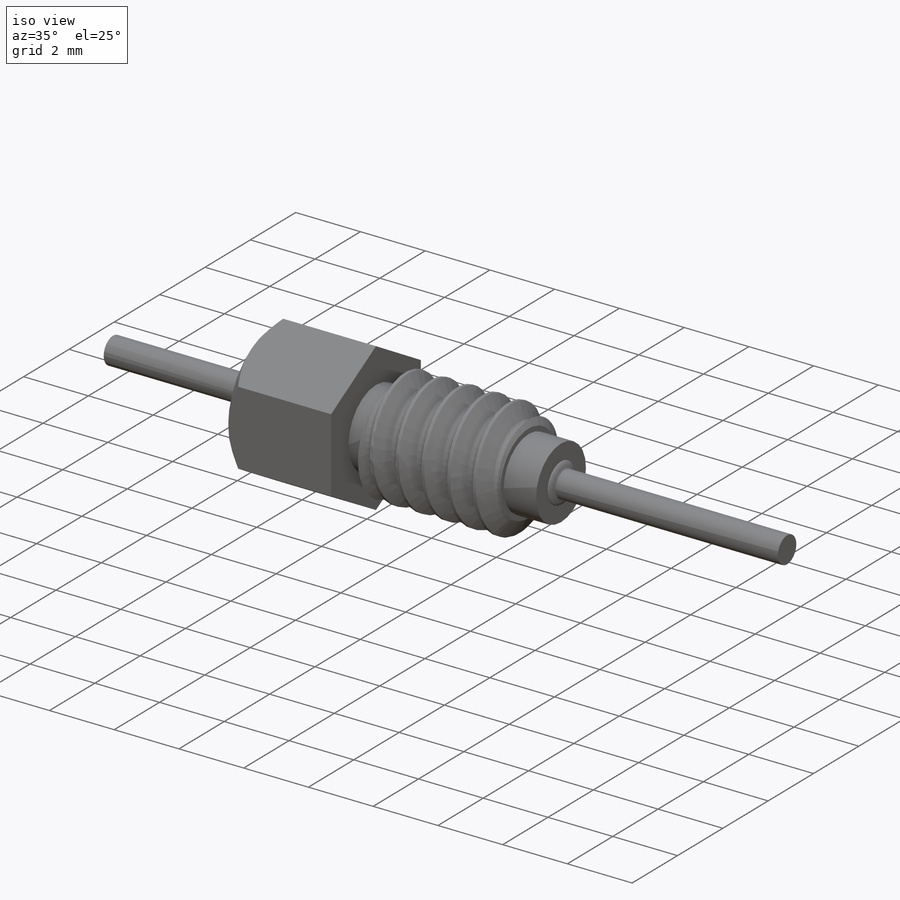
[diagram: iso view]
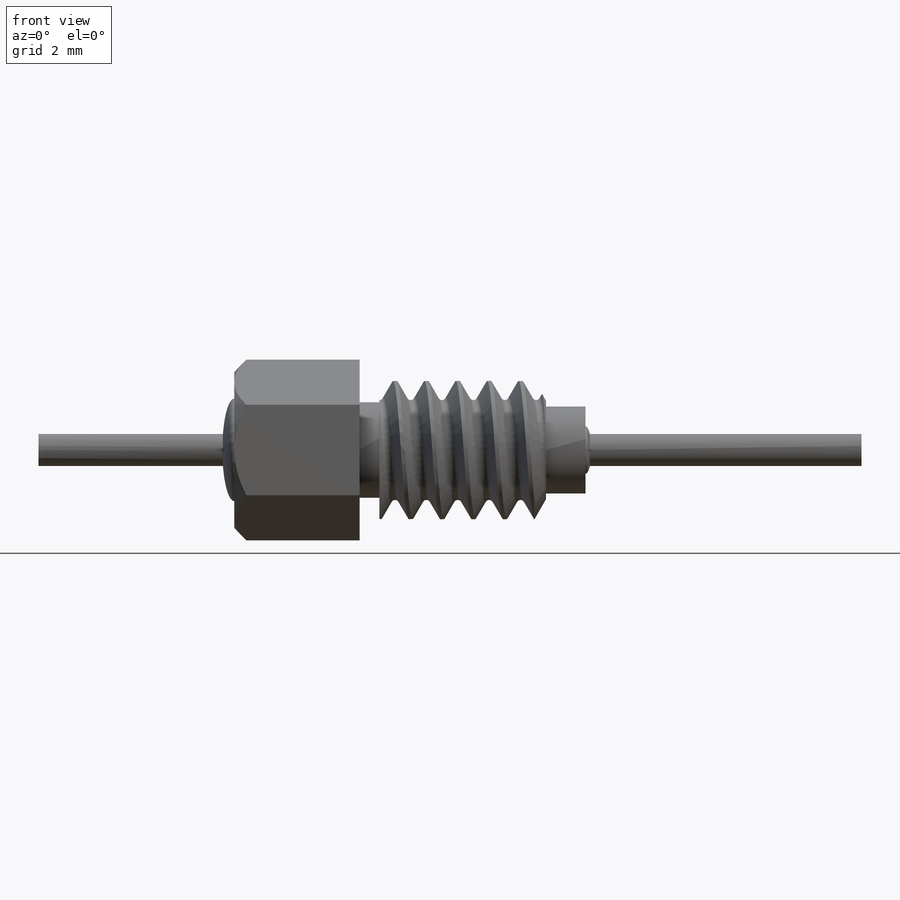
[diagram: front view]
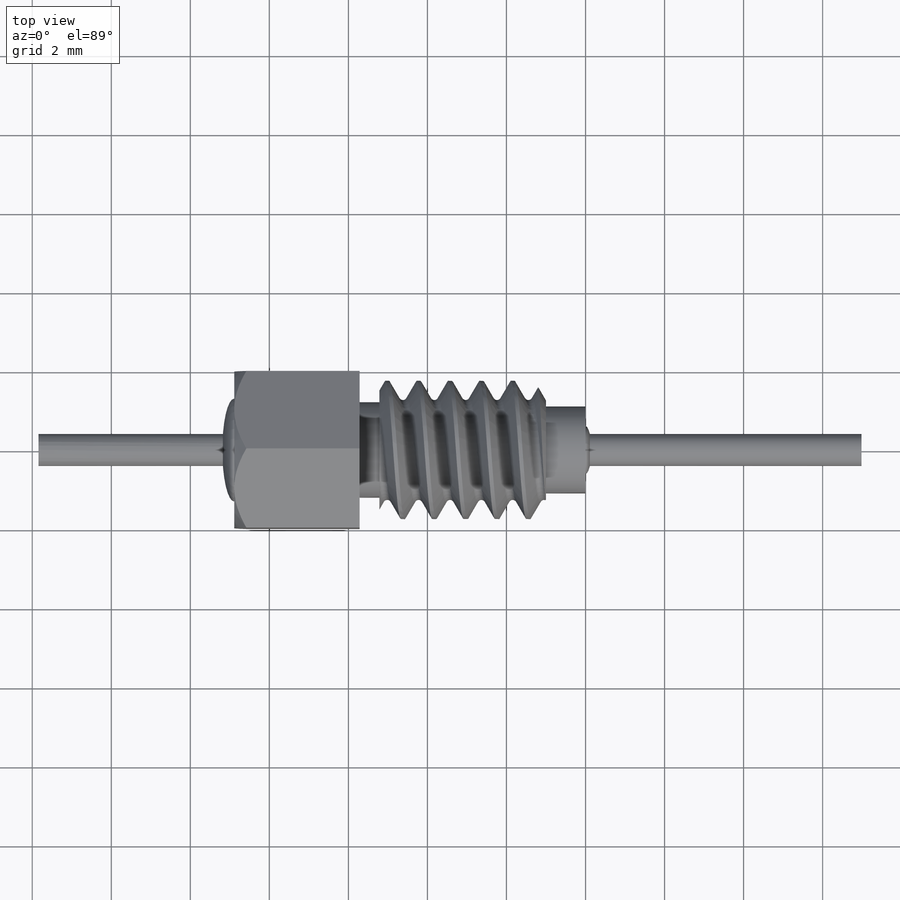
[diagram: top view]
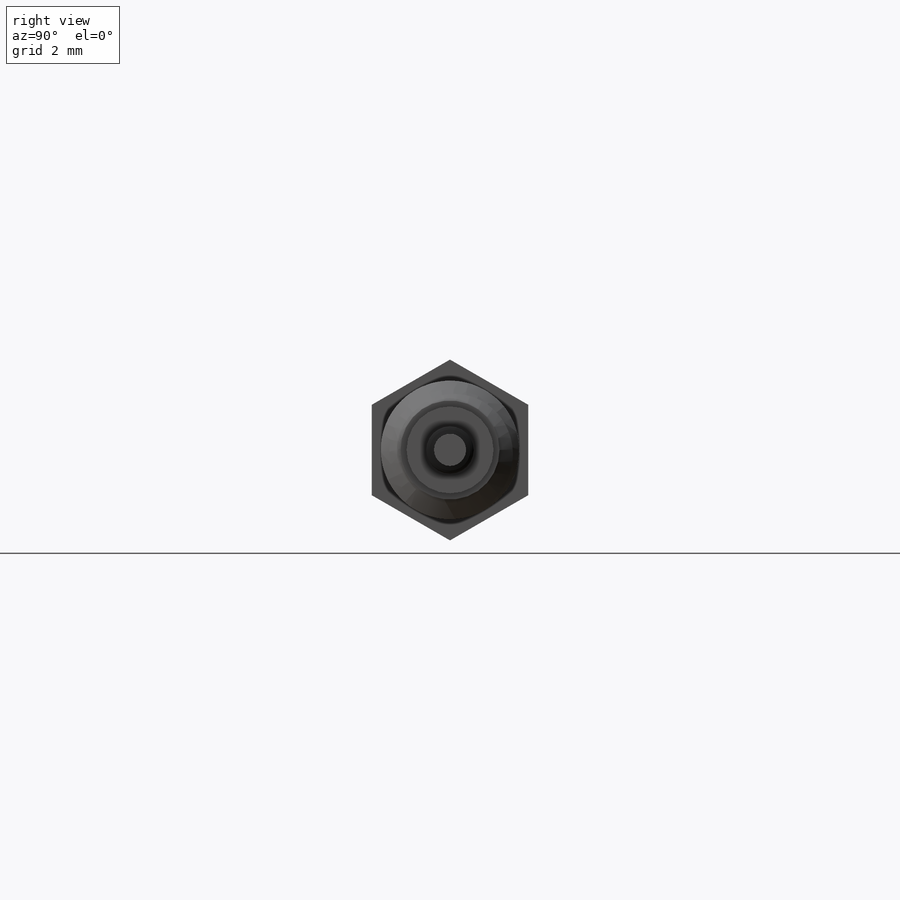
[diagram: right view]
SOLIDWORKS PART (.sldprt)
format: sldprt  version: not decoded by parser v0  size: 596,480 bytes
history: native  units: mm
features: sketch x12, extrude x4, plane x3, revolve x2, cut_revolve x2, material x1, helix x1, chamfer x1, sweep x1 + 1 further entry (+8 scaffold rows collapsed)
feature tree (36):
  scaffold x8  (default folders/planes/origin — collapsed)
  material  "Material <nicht festgelegt>"
  "Beschriftungen"  RD1=12.7mm RD2=5.715mm RD4=3.175mm RD5=8.128mm RD3=0.8128mm RD6=3.5052mm
  plane  "Ebene vorne"
  plane  "Ebene oben"
  plane  "Ebene rechts"
  sketch  "4402-018"  dims[c1.D1=0.8128mm c1.D2=6.985mm c1.D3=8.128mm c1.D4=3.175mm c1.D5=~0.745307mm c2.D5=45.0deg c3.D5=~0.745307mm c4.D5=135.0deg c5.D5=~0.745307mm c6.D5=135.0deg c7.D5=~2.429693mm c8.D5=45.0deg c9.D5=~2.429693mm c10.D5=45.0deg c10.D6=~6.317283mm c11.D6=45.0deg c11.D7=~3.545664mm]
  sketch  "Skizze1"  dims[D1=0.8128mm]
  extrude  "Aufsatz-Linear austragen1"  Depth=6.985mm
  sketch  "Skizze2"  dims[D1=3.5052mm]
  extrude  "Aufsatz-Linear austragen2"  Depth=5.715mm
  sketch  "Skizze3"  dims[D1=3.9624mm]
  extrude  "Aufsatz-Linear austragen3"  Depth=3.175mm
  sketch  "Skizze8"  dims[c1.D1=~0.472286mm c2.D1=45.0deg c2.D2=1.9812mm c3.D1=360.0deg c3.D3=1.0mm c3.D4=10.0mm c3.D7=0.0mm]
  sketch  "Skizze9"  dims[D1=0.3mm D2=1.3mm]
  revolve  "Rotation1"  Angle=360deg
  sketch  "Skizze4"  dims[D1=0.8128mm]
  extrude  "Aufsatz-Linear austragen4"  Depth=4.953mm
  sketch  "Skizze10"  dims[D1=0.15mm D2=0.6mm]
  revolve  "Rotation2"  Angle=360deg
  sketch  "Skizze11"  dims[D1=1.0mm D2=1.1mm]
  cut_revolve  "Schnitt-Rotation2"  Angle=360deg
  sketch  "Skizze12"  dims[D1=~1.209675mm D2=0.5mm]
  cut_revolve  "Schnitt-Rotation3"  Angle=360deg
  sketch  "Skizze13"
  helix  "Spirale/Helix1"  Pitch=4.95mm
  chamfer  "Fase1"  Distance=0.5mm Angle=30deg
  sketch  "Skizze14"  dims[c1.D5=~0.114568mm c1.D1=~0.287171mm c2.D1=60.0deg c2.D2=~0.79375mm c2.D3=~0.687408mm c2.D4=~0.085926mm]
  sweep  "Schnitt-Austragung1"
decode coverage: 21 of 23 modeling features carry decoded parameters; 1 rows unclassified (native names shown)
note: ~ marks probable driven/reference dimensions
note: suppression state not decoded; provenance and decode notes live in map.json
